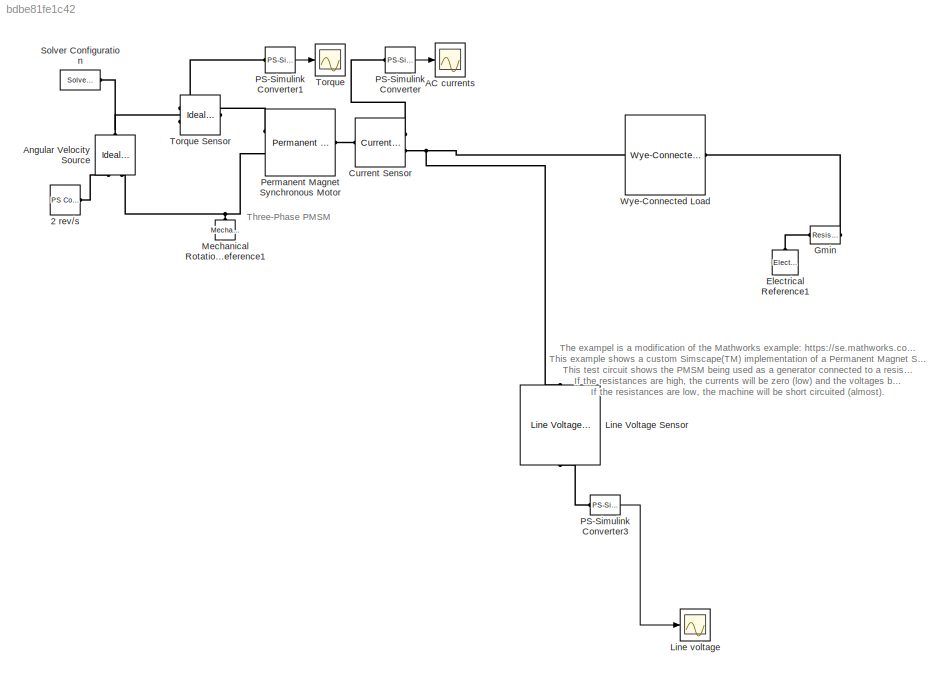
MODEL slx_bdbe81fe1c42
KIND model
CONFIG AbsTol = 1e-4
CONFIG FixedStep = auto
CONFIG MaxStep = 1e-4
CONFIG MinStep = auto
CONFIG RelTol = 1e-4
CONFIG SampleTimeConstraint = Unconstrained
CONFIG Solver = ode23t
CONFIG SolverMode = Auto
CONFIG SolverName = ode23t
CONFIG StartTime = 0.0
CONFIG StopTime = 1
BLOCK [Reference] 2 rev//s  REF=fl_lib/Physical Signals/Sources/PS Constant
  Ports = [0, 0, 0, 0, 0, 0, 1]
  SourceBlock = fl_lib/Physical Signals/Sources/PS Constant
  SourceType = PS Constant
BLOCK [Scope] AC currents
  Ports = [1]
  ScopeSpecificationString = Simulink.scopes.TimeScopeBlockCfg('CurrentConfiguration', extmgr.ConfigurationSet(extmgr.Configuration('Core','General UI',true),extmgr.Configuration('Core','Source UI',true),extmgr.Configuration('Sources','WiredSimulink',true,'DataLoggingVariableName','ScopeData5','DataLoggingSaveFormat','StructureWithTime','DataLoggingMaxPoints','50000','DataLoggingDecimation','10','DataLoggingDecimateData',true...<+1767ch>
BLOCK [Reference] Angular Velocity Source  REF=fl_lib/Mechanical/Mechanical Sources/Ideal Angular
Velocity Source
  Ports = [0, 0, 0, 0, 0, 1, 2]
  SourceBlock = fl_lib/Mechanical/Mechanical Sources/Ideal Angular\nVelocity Source
  SourceType = Ideal Angular\nVelocity Source
BLOCK [Reference] Current Sensor  REF=pe_lib/Sensors/Current Sensor
  Ports = [0, 0, 0, 0, 0, 1, 2]
  SourceBlock = pe_lib/Sensors/Current Sensor
  SourceType = Current Sensor
BLOCK [Reference] Electrical Reference1  REF=fl_lib/Electrical/Electrical Elements/Electrical Reference
  Ports = [0, 0, 0, 0, 0, 1]
  SourceBlock = fl_lib/Electrical/Electrical Elements/Electrical Reference
  SourceType = Electrical Reference
BLOCK [Reference] Gmin  REF=fl_lib/Electrical/Electrical Elements/Resistor
  Ports = [0, 0, 0, 0, 0, 1, 1]
  SourceBlock = fl_lib/Electrical/Electrical Elements/Resistor
  SourceType = Resistor
BLOCK [Reference] Line Voltage Sensor  REF=pe_lib/Sensors/Line Voltage Sensor
  Ports = [0, 0, 0, 0, 0, 1, 1]
  SourceBlock = pe_lib/Sensors/Line Voltage Sensor
  SourceType = Line Voltage Sensor
BLOCK [Scope] Line voltage
  Ports = [1]
  ScopeSpecificationString = Simulink.scopes.TimeScopeBlockCfg('CurrentConfiguration', extmgr.ConfigurationSet(extmgr.Configuration('Core','General UI',true,'ShowStatusbar',false),extmgr.Configuration('Core','Source UI',true),extmgr.Configuration('Sources','WiredSimulink',true,'DataLoggingVariableName','ScopeData3','DataLoggingSaveFormat','StructureWithTime','DataLoggingMaxPoints','50000','DataLoggingDecimation','10','DataLog...<+1786ch>
BLOCK [Reference] Mechanical Rotational Reference1  REF=fl_lib/Mechanical/Rotational Elements/Mechanical
Rotational Reference
  Ports = [0, 0, 0, 0, 0, 1]
  SourceBlock = fl_lib/Mechanical/Rotational Elements/Mechanical\nRotational Reference
  SourceType = Mechanical\nRotational Reference
BLOCK [Reference] PS-Simulink Converter  REF=nesl_utility/PS-Simulink
Converter
  Ports = [0, 1, 0, 0, 0, 1]
  SourceBlock = nesl_utility/PS-Simulink\nConverter
  SourceType = PS-Simulink\nConverter
BLOCK [Reference] PS-Simulink Converter1  REF=nesl_utility/PS-Simulink
Converter
  Ports = [0, 1, 0, 0, 0, 1]
  SourceBlock = nesl_utility/PS-Simulink\nConverter
  SourceType = PS-Simulink\nConverter
BLOCK [Reference] PS-Simulink Converter3  REF=nesl_utility/PS-Simulink
Converter
  Ports = [0, 1, 0, 0, 0, 1]
  SourceBlock = nesl_utility/PS-Simulink\nConverter
  SourceType = PS-Simulink\nConverter
BLOCK [Reference] Permanent Magnet Synchronous Motor  REF=ThreePhaseExamples_lib/Permanent Magnet
Synchronous Motor
  Ports = [0, 0, 0, 0, 0, 1, 2]
  SourceBlock = ThreePhaseExamples_lib/Permanent Magnet\nSynchronous Motor
  SourceType = Permanent Magnet\nSynchronous Motor
BLOCK [Reference] Solver Configuration  REF=nesl_utility/Solver
Configuration
  Ports = [0, 0, 0, 0, 0, 0, 1]
  SourceBlock = nesl_utility/Solver\nConfiguration
  SourceType = Solver\nConfiguration
BLOCK [Scope] Torque
  Ports = [1]
  ScopeSpecificationString = Simulink.scopes.TimeScopeBlockCfg('CurrentConfiguration', extmgr.ConfigurationSet(extmgr.Configuration('Core','General UI',true),extmgr.Configuration('Core','Source UI',true),extmgr.Configuration('Sources','WiredSimulink',true,'DataLoggingVariableName','ScopeData7','DataLoggingSaveFormat','StructureWithTime','DataLoggingMaxPoints','50000','DataLoggingDecimation','10','DataLoggingDecimateData',true...<+1703ch>
BLOCK [Reference] Torque Sensor  REF=fl_lib/Mechanical/Mechanical Sensors/Ideal Torque Sensor
  Ports = [0, 0, 0, 0, 0, 1, 2]
  SourceBlock = fl_lib/Mechanical/Mechanical Sensors/Ideal Torque Sensor
  SourceType = Ideal Torque Sensor
BLOCK [Reference] Wye-Connected Load  REF=pe_lib/Passive Devices/Wye-Connected Load
  Ports = [0, 0, 0, 0, 0, 1, 1]
  SourceBlock = pe_lib/Passive Devices/Wye-Connected Load
  SourceType = Wye-Connected Load
ANNOTATION (root): The exampel is a modification of the Mathworks example: https://se.mathworks.com/help/physmod/sps/examples/three-phase-custom-pmsm.html This example shows a custom Simscape(TM) implementation of a Permanent Magnet Synchronous Machine (PMSM). This test circuit shows the PMSM being used as a generator connected to a resistive Y - connected load. If the resistances are high, the currents will be zero...<+162ch>
ANNOTATION (root): Three-Phase PMSM
LINE PS-Simulink Converter1:1 -> Torque:1
LINE PS-Simulink Converter3:1 -> Line voltage:1
LINE PS-Simulink Converter:1 -> AC currents:1
PLINE 2 rev//s:RConn1 -- Angular Velocity Source:RConn1
PNET net1: Angular Velocity Source:LConn1 -- Solver Configuration:RConn1 -- Torque Sensor:LConn1
PNET net2: Angular Velocity Source:RConn2 -- Mechanical Rotational Reference1:LConn1 -- Permanent Magnet Synchronous Motor:RConn2
PLINE Current Sensor:LConn1 -- Permanent Magnet Synchronous Motor:LConn1
PLINE Current Sensor:RConn1 -- PS-Simulink Converter:LConn1
PNET net3: Current Sensor:RConn2 -- Line Voltage Sensor:LConn1 -- Wye-Connected Load:LConn1
PLINE Electrical Reference1:LConn1 -- Gmin:LConn1
PLINE Gmin:RConn1 -- Wye-Connected Load:RConn1
PLINE Line Voltage Sensor:RConn1 -- PS-Simulink Converter3:LConn1
PLINE PS-Simulink Converter1:LConn1 -- Torque Sensor:RConn2
PLINE Permanent Magnet Synchronous Motor:RConn1 -- Torque Sensor:RConn1
note: PNET lines group multi-terminal physical nets as a canonical sorted terminal list (undirected conserving connections); 2-terminal nets keep the pairwise PLINE form
